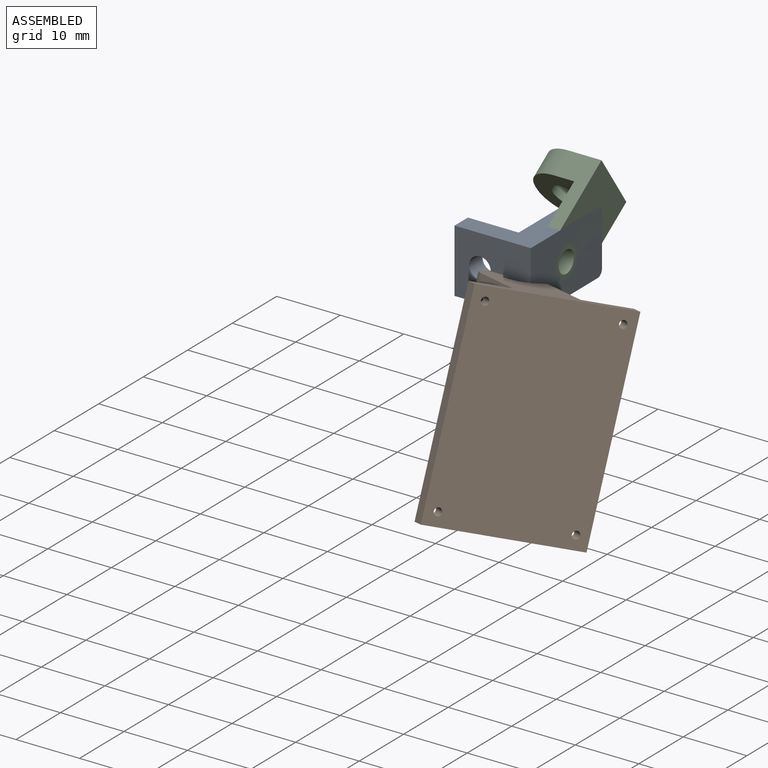
[diagram: assembled view]
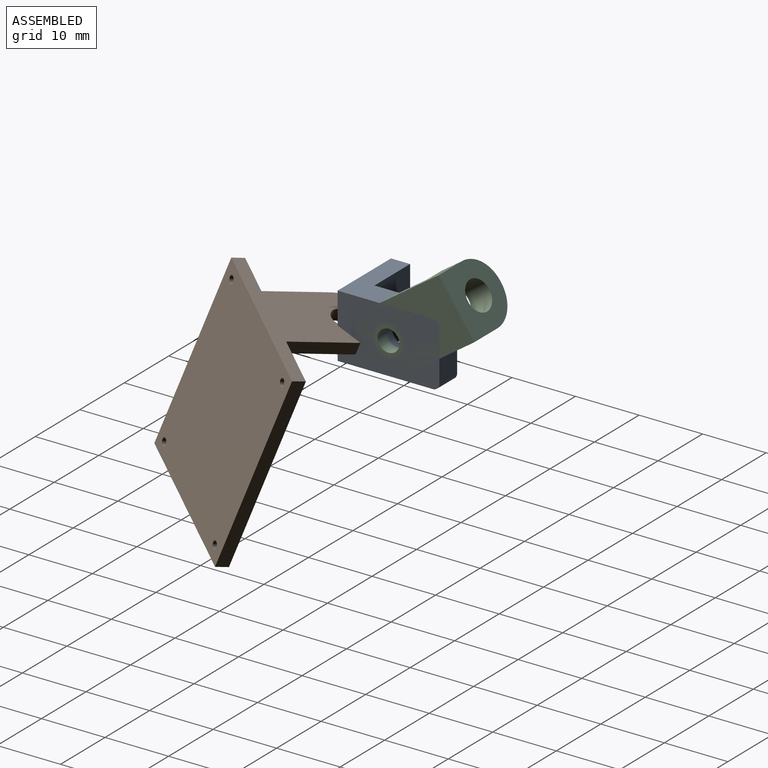
[diagram: assembled view, second angle]
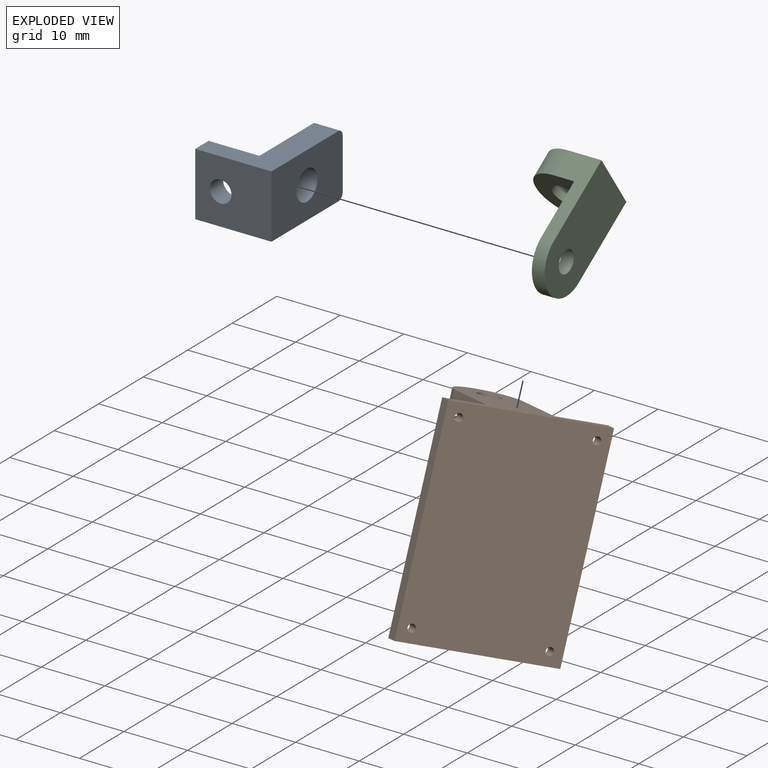
[diagram: exploded view]
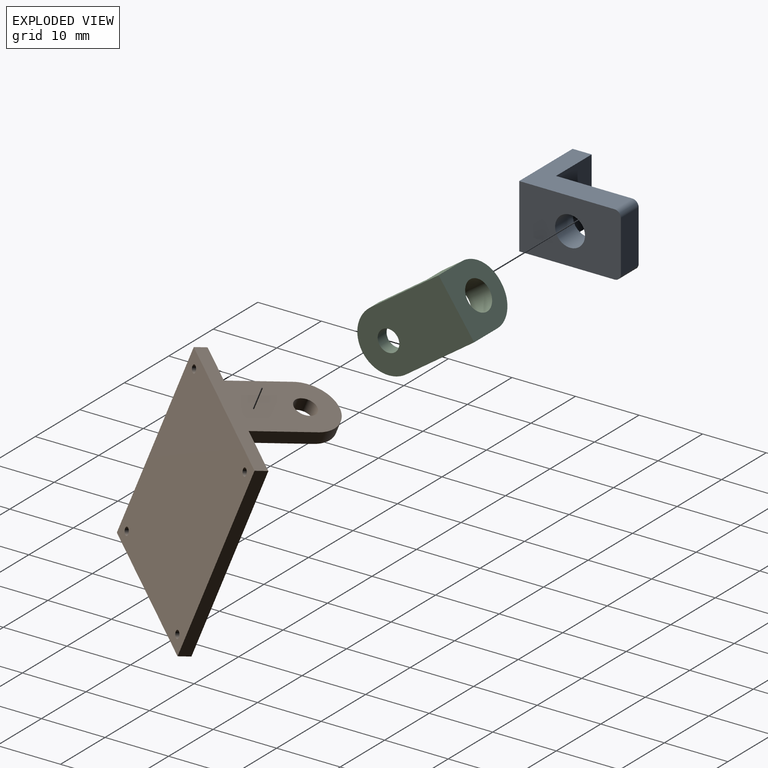
[diagram: exploded view, second angle]
FCSTD DOCUMENT  (FreeCAD 1.0R39109 (Git))
Label: CameraMount
License: All rights reserved
LicenseURL: https://en.wikipedia.org/wiki/All_rights_reserved
objects: Sketcher::SketchObject×13, PartDesign::Pad×8, PartDesign::Body×5, Part::Feature×5, PartDesign::ShapeBinder×3, App::Link×3, App::FeaturePython×3, PartDesign::Hole×2, PartDesign::Pocket×2, PartDesign::Plane×2, PartDesign::Fillet×2, App::Part×1, Assembly::JointGroup×1, Assembly::AssemblyObject×1
note: 83 computed .brp shape members not serialized (recipe doc carries the construction recipe); baked Part::Feature solids carry a one-line shape summary decoded from their .brp

FEATURE [Sketcher::SketchObject] Sketch
  ArcFitTolerance = 1e-06
  AttachmentSupport = -> [XY_Plane]
  FullyConstrained = true
  MakeInternals = false
  MapMode = 5
  sketch-geometry (8):
    g0: LineSegment StartX=-15 StartY=11 StartZ=0 EndX=-15 EndY=-11 EndZ=0
    g1: LineSegment StartX=-15 StartY=-11 StartZ=0 EndX=15 EndY=-11 EndZ=0
    g2: LineSegment StartX=15 StartY=-11 StartZ=0 EndX=15 EndY=11 EndZ=0
    g3: LineSegment StartX=15 StartY=11 StartZ=0 EndX=-15 EndY=11 EndZ=0
    g4: Circle CenterX=-14 CenterY=-10 CenterZ=0 NormalX=0 NormalY=0 NormalZ=1 AngleXU=0 Radius=0.9
    g5: Circle CenterX=-14 CenterY=10 CenterZ=0 NormalX=0 NormalY=0 NormalZ=1 AngleXU=0 Radius=0.9
    g6: Circle CenterX=14 CenterY=-10 CenterZ=0 NormalX=0 NormalY=0 NormalZ=1 AngleXU=0 Radius=0.9
    g7: Circle CenterX=14 CenterY=10 CenterZ=0 NormalX=0 NormalY=0 NormalZ=1 AngleXU=0 Radius=0.9
  constraints (20):
    c: Coincident(g0,g1)
    c: Coincident(g1,g2)
    c: Coincident(g2,g3)
    c: Coincident(g3,g0)
    c: Vertical(g0)
    c: Vertical(g2)
    c: Horizontal(g1)
    c: Horizontal(g3)
    c: Distance(g0,g2) = 30
    c: Distance(g1,g3) = 22
    c: Symmetric(g1,g0,g-1)
    c: Diameter(g4) = 1.8
    c: Distance(g4,g0) = 1
    c: Distance(g4,g1) = 1
    c: Diameter(g5) = 1.8
    c: Diameter(g6) = 1.8
    c: Diameter(g7) = 1.8
    c: Symmetric(g6,g4,g-2)
    c: Symmetric(g5,g7,g-2)
    c: Symmetric(g4,g5,g-1)
FEATURE [PartDesign::Pad] Pad
  Direction = (0,0,1)
  Length = 3
  Length2 = 10
  Profile = -> Sketch
  ReferenceAxis = -> Sketch [N_Axis]
  Refine = true
  Suppressed = false
  Type = 0
FEATURE [PartDesign::Body] Body  label="Camera PCB"
  AllowCompound = false
  Group = -> [Sketch,Pad]
  Origin = -> Origin
  Tip = -> Pad
FEATURE [Part::Feature] Part__Feature  label="3030 mount"
  shape: bbox 49.01 x 46.01 x 35.01 mm, 34 faces (baked)
FEATURE [Part::Feature] Part__Feature001  label="Ball outer"
  shape: bbox 28.94 x 36.01 x 22.01 mm, 45 faces (baked)
FEATURE [Part::Feature] Part__Feature002  label="Camera mount"
  Placement = pos=(2.63e-14,-2.5,-0.5) rot=(0,0,1;0rad)
  shape: bbox 42 x 16 x 38 mm, 34 faces (baked)
FEATURE [Part::Feature] Part__Feature003  label="2020 mount"
  Placement = pos=(4.5,-8.9e-15,0) rot=(0,0,1;0rad)
  shape: bbox 44.52 x 46.02 x 35.02 mm, 32 faces (baked)
FEATURE [App::Part] Ball_Joint_camera_mount_v6  label="Ball-Joint camera mount v6"
  Group = -> [Part__Feature,Part__Feature001,Part__Feature002,Part__Feature003]
  Origin = -> Origin001
FEATURE [Part::Feature] Part__Feature004  label="Extrusion Profiles v3"
  Placement = pos=(-29,0,5) rot=(0,1,0;1.5708rad)
  shape: bbox 100 x 20 x 20 mm, 67 faces (baked)
FEATURE [Sketcher::SketchObject] Sketch001
  ArcFitTolerance = 1e-06
  AttachmentSupport = -> [XY_Plane002]
  FullyConstrained = true
  MakeInternals = false
  MapMode = 5
  sketch-geometry (6):
    g0: LineSegment StartX=-10 StartY=0 StartZ=0 EndX=-10 EndY=-3 EndZ=0
    g1: LineSegment StartX=-10 StartY=-3 StartZ=0 EndX=-2 EndY=-3 EndZ=0
    g2: LineSegment StartX=-2 StartY=-3 StartZ=0 EndX=-2 EndY=-16 EndZ=0
    g3: LineSegment StartX=-2 StartY=-16 StartZ=0 EndX=2 EndY=-16 EndZ=0
    g4: LineSegment StartX=2 StartY=-16 StartZ=0 EndX=2 EndY=0 EndZ=0
    g5: LineSegment StartX=-10 StartY=0 StartZ=0 EndX=2 EndY=0 EndZ=0
  constraints (17):
    c: Coincident(g0,g1)
    c: Vertical(g0)
    c: Distance(g1,g0) = 3
    c: PointOnObject(g0,g-1)
    c: Coincident(g2,g3)
    c: Coincident(g3,g4)
    c: Vertical(g2)
    c: Vertical(g4)
    c: Distance(g3,g2) = 13
    c: Coincident(g1,g2)
    c: Horizontal(g1,g0)
    c: Coincident(g5,g0)
    c: PointOnObject(g5,g-1)
    c: Coincident(g4,g5)
    c: DistanceX(g3,g3) = 4
    c: Symmetric(g2,g3,g-2)
    c: DistanceX(g1,g1) = 8
FEATURE [PartDesign::Pad] Pad001
  Direction = (0,0,1)
  Length = 10
  Length2 = 10
  Profile = -> Sketch001
  ReferenceAxis = -> Sketch001 [N_Axis]
  Refine = true
  Reversed = true
  Suppressed = false
  Type = 0
FEATURE [Sketcher::SketchObject] Sketch002
  ArcFitTolerance = 1e-06
  AttachmentSupport = -> [Pad001]
  ExternalGeometry = -> [Pad001]
  FullyConstrained = true
  MakeInternals = false
  MapMode = 5
  Placement = pos=(0,-3,0) rot=(1,0,0;1.5708rad)
  sketch-geometry (3):
    g0: Circle CenterX=-6 CenterY=-5 CenterZ=0 NormalX=0 NormalY=0 NormalZ=1 AngleXU=0 Radius=1.5
    g1: GeomPoint [constr] X=-6 Y=0 Z=0
    g2: GeomPoint [constr] X=-10 Y=-5 Z=0
  constraints (5):
    c: Diameter(g0) = 3
    c: Symmetric(g-4,g-4,g1)
    c: Symmetric(g-3,g-3,g2)
    c: Horizontal(g2,g0)
    c: Vertical(g1,g0)
FEATURE [PartDesign::Hole] Hole
  BaseFeature = -> Pad001
  CustomThreadClearance = 0
  Depth = 25
  DepthType = 0
  Diameter = 3.4
  DrillForDepth = false
  DrillPoint = 1
  DrillPointAngle = 118
  HoleCutCountersinkAngle = 90
  HoleCutCustomValues = false
  HoleCutDepth = 0
  HoleCutDiameter = 6.1
  HoleCutType = 0
  ModelThread = false
  Profile = -> Sketch002
  Refine = true
  Suppressed = false
  Tapered = false
  TaperedAngle = 90
  ThreadClass = 0
  ThreadDepth = 25
  ThreadDepthType = 0
  ThreadDirection = 0
  ThreadFit = 0
  ThreadSize = 9
  ThreadType = 1
  Threaded = false
  UseCustomThreadClearance = false
FEATURE [Sketcher::SketchObject] Sketch003
  ArcFitTolerance = 1e-06
  AttachmentSupport = -> [Hole]
  ExternalGeometry = -> [Hole]
  FullyConstrained = true
  MakeInternals = false
  MapMode = 5
  Placement = pos=(2,0,0) rot=(0.57735,0.57735,0.57735;2.0944rad)
  sketch-geometry (3):
    g0: GeomPoint [constr] X=-8 Y=-10 Z=0
    g1: GeomPoint [constr] X=-2 Y=-5 Z=0
    g2: Circle CenterX=-8 CenterY=-5 CenterZ=0 NormalX=0 NormalY=0 NormalZ=1 AngleXU=0 Radius=2.35
  constraints (5):
    c: Symmetric(g-4,g-4,g0)
    c: Symmetric(g-3,g-3,g1)
    c: Horizontal(g2,g1)
    c: Vertical(g2,g0)
    c: Diameter(g2) = 4.7
FEATURE [PartDesign::Pocket] Pocket
  BaseFeature = -> Hole
  Direction = (-1,0,0)
  Length = 5
  Length2 = 5
  Profile = -> Sketch003
  ReferenceAxis = -> Sketch003 [N_Axis]
  Refine = true
  Suppressed = false
  Type = 0
FEATURE [PartDesign::ShapeBinder] ShapeBinder
  Support = -> [Pocket]
  TraceSupport = false
FEATURE [PartDesign::Plane] DatumPlane
  AttachmentSupport = -> [ShapeBinder]
  Length = 60
  MapMode = 5
  Placement = pos=(2,0,0) rot=(0.57735,0.57735,0.57735;2.0944rad)
  ResizeMode = 0
  Width = 60
FEATURE [Sketcher::SketchObject] Sketch004
  ArcFitTolerance = 1e-06
  AttachmentSupport = -> [DatumPlane]
  ExternalGeometry = -> [ShapeBinder]
  FullyConstrained = true
  MakeInternals = false
  MapMode = 5
  Placement = pos=(2,0,0) rot=(0.57735,0.57735,0.57735;2.0944rad)
  sketch-geometry (7):
    g0: ArcOfCircle CenterX=-7 CenterY=-5 CenterZ=0 NormalX=0 NormalY=0 NormalZ=1 AngleXU=0 Radius=4.9 StartAngle=4.71239 EndAngle=7.85398
    g1: Circle CenterX=-7 CenterY=-5 CenterZ=0 NormalX=0 NormalY=0 NormalZ=1 AngleXU=0 Radius=1.7
    g2: GeomPoint X=-7 Y=-0.1 Z=0
    g3: GeomPoint X=-7 Y=-9.9 Z=0
    g4: LineSegment StartX=-7 StartY=-0.1 StartZ=0 EndX=-20 EndY=-0.1 EndZ=0
    g5: LineSegment StartX=-20 StartY=-0.1 StartZ=0 EndX=-20 EndY=-9.9 EndZ=0
    g6: LineSegment StartX=-20 StartY=-9.9 StartZ=0 EndX=-7 EndY=-9.9 EndZ=0
  constraints (15):
    c: Coincident(g0,g-3)
    c: Diameter(g0) = 9.8
    c: Coincident(g1,g0)
    c: Diameter(g1) = 3.4
    c: Vertical(g3,g0)
    c: Vertical(g2,g0)
    c: Coincident(g4,g2)
    c: Horizontal(g4)
    c: Coincident(g5,g4)
    c: Vertical(g5)
    c: Coincident(g6,g5)
    c: Coincident(g6,g3)
    c: Coincident(g0,g4)
    c: Tangent(g0,g6) = -1.5708
    c: DistanceX(g6,g6) = 13
FEATURE [PartDesign::Pad] Pad002
  Direction = (1,0,0)
  Length = 2
  Length2 = 10
  Placement = pos=(2,0,0) rot=(0.57735,0.57735,0.57735;2.0944rad)
  Profile = -> Sketch004
  ReferenceAxis = -> Sketch004 [N_Axis]
  Refine = true
  Suppressed = false
  Type = 0
FEATURE [Sketcher::SketchObject] Sketch005
  ArcFitTolerance = 1e-06
  AttachmentSupport = -> [Pad002]
  ExternalGeometry = -> [Pad002]
  FullyConstrained = true
  MakeInternals = false
  MapMode = 5
  Placement = pos=(2,0,-9.9) rot=(0.707107,0.707107,0;3.14159rad)
  sketch-geometry (4):
    g0: LineSegment StartX=-20 StartY=2 StartZ=0 EndX=-16 EndY=2 EndZ=0
    g1: LineSegment StartX=-16 StartY=2 StartZ=0 EndX=-16 EndY=10 EndZ=0
    g2: LineSegment StartX=-16 StartY=10 StartZ=0 EndX=-20 EndY=10 EndZ=0
    g3: LineSegment StartX=-20 StartY=10 StartZ=0 EndX=-20 EndY=2 EndZ=0
  constraints (11):
    c: Coincident(g0,g1)
    c: Coincident(g1,g2)
    c: Coincident(g2,g3)
    c: Coincident(g3,g0)
    c: Horizontal(g0)
    c: Horizontal(g2)
    c: Vertical(g1)
    c: Vertical(g3)
    c: Distance(g1,g3) = 4
    c: Distance(g0,g2) = 8
    c: Coincident(g0,g-3)
FEATURE [PartDesign::Pad] Pad003
  BaseFeature = -> Pad002
  Direction = (0,0,-1)
  Length = 9.8
  Length2 = 10
  Placement = pos=(2,0,0) rot=(0.57735,0.57735,0.57735;2.0944rad)
  Profile = -> Sketch005
  ReferenceAxis = -> Sketch005 [N_Axis]
  Refine = true
  Reversed = true
  Suppressed = false
  Type = 0
FEATURE [Sketcher::SketchObject] Sketch006
  ArcFitTolerance = 1e-06
  AttachmentSupport = -> [Pad003]
  ExternalGeometry = -> [Pad003]
  FullyConstrained = true
  MakeInternals = false
  MapMode = 5
  Placement = pos=(2,-20,0) rot=(0.57735,0.57735,-0.57735;2.0944rad)
  sketch-geometry (3):
    g0: GeomPoint [constr] X=0.1 Y=5 Z=0
    g1: GeomPoint [constr] X=5 Y=10 Z=0
    g2: Circle CenterX=5 CenterY=5 CenterZ=0 NormalX=0 NormalY=0 NormalZ=1 AngleXU=0 Radius=2.35
  constraints (5):
    c: Symmetric(g-5,g-5,g0)
    c: Symmetric(g-4,g-4,g1)
    c: Diameter(g2) = 4.7
    c: Horizontal(g0,g2)
    c: Vertical(g2,g1)
FEATURE [PartDesign::Pocket] Pocket001
  BaseFeature = -> Pad003
  Direction = (0,1,0)
  Length = 5
  Length2 = 5
  Placement = pos=(2,0,0) rot=(0.57735,0.57735,0.57735;2.0944rad)
  Profile = -> Sketch006
  ReferenceAxis = -> Sketch006 [N_Axis]
  Refine = true
  Suppressed = false
  Type = 0
FEATURE [PartDesign::ShapeBinder] ShapeBinder001
  Placement = pos=(2,0,0) rot=(0.57735,0.57735,0.57735;2.0944rad)
  Support = -> [Pocket001]
  TraceSupport = false
FEATURE [Sketcher::SketchObject] Sketch007
  ArcFitTolerance = 1e-06
  AttachmentSupport = -> [ShapeBinder001]
  ExternalGeometry = -> [ShapeBinder001]
  FullyConstrained = true
  MakeInternals = false
  MapMode = 5
  Placement = pos=(2,-20,0) rot=(0.57735,0.57735,-0.57735;2.0944rad)
  sketch-geometry (7):
    g0: ArcOfCircle CenterX=5 CenterY=5 CenterZ=0 NormalX=0 NormalY=0 NormalZ=1 AngleXU=0 Radius=4.9 StartAngle=1.5708 EndAngle=4.71239
    g1: Circle CenterX=5 CenterY=5 CenterZ=0 NormalX=0 NormalY=0 NormalZ=1 AngleXU=0 Radius=1.7
    g2: GeomPoint X=5 Y=9.9 Z=0
    g3: GeomPoint X=5 Y=0.1 Z=0
    g4: LineSegment StartX=5 StartY=9.9 StartZ=0 EndX=15 EndY=9.9 EndZ=0
    g5: LineSegment StartX=15 StartY=9.9 StartZ=0 EndX=15 EndY=0.1 EndZ=0
    g6: LineSegment StartX=15 StartY=0.1 StartZ=0 EndX=5 EndY=0.1 EndZ=0
  constraints (16):
    c: Diameter(g0) = 9.8
    c: Coincident(g0,g-3)
    c: Diameter(g1) = 3.4
    c: Coincident(g1,g0)
    c: Vertical(g3,g0)
    c: Vertical(g0,g2)
    c: Distance(g4) = 10
    c: Coincident(g4,g2)
    c: Horizontal(g4)
    c: Coincident(g5,g4)
    c: Vertical(g5)
    c: Coincident(g6,g5)
    c: Coincident(g6,g3)
    c: Horizontal(g6)
    c: Coincident(g0,g6)
    c: Coincident(g0,g4)
FEATURE [PartDesign::Pad] Pad004
  Direction = (0,-1,0)
  Length = 2
  Length2 = 10
  Placement = pos=(2,0,0) rot=(0.57735,0.57735,0.57735;2.0944rad)
  Profile = -> Sketch007
  ReferenceAxis = -> Sketch007 [N_Axis]
  Refine = true
  Suppressed = false
  Type = 0
FEATURE [Sketcher::SketchObject] Sketch009
  ArcFitTolerance = 1e-06
  AttachmentSupport = -> [Pad004]
  ExternalGeometry = -> [Pad004]
  FullyConstrained = false
  MakeInternals = false
  MapMode = 5
  Placement = pos=(2,0,-15) rot=(0.707107,0.707107,0;3.14159rad)
  sketch-geometry (4):
    g0: LineSegment StartX=-52 StartY=16.3391 StartZ=0 EndX=-52 EndY=-7.66088 EndZ=0
    g1: LineSegment StartX=-52 StartY=-7.66088 StartZ=0 EndX=-20 EndY=-7.66088 EndZ=0
    g2: LineSegment StartX=-20 StartY=-7.66088 StartZ=0 EndX=-20 EndY=16.3391 EndZ=0
    g3: LineSegment StartX=-20 StartY=16.3391 StartZ=0 EndX=-52 EndY=16.3391 EndZ=0
  constraints (11):
    c: Coincident(g0,g1)
    c: Coincident(g1,g2)
    c: Coincident(g2,g3)
    c: Coincident(g3,g0)
    c: Vertical(g0)
    c: Vertical(g2)
    c: Horizontal(g1)
    c: Horizontal(g3)
    c: DistanceX(g3,g3) = 32
    c: DistanceY(g0,g0) = 24
    c: PointOnObject(g-3,g2)
FEATURE [PartDesign::Pad] Pad005
  BaseFeature = -> Pad004
  Direction = (0,0,-1)
  Length = 2
  Length2 = 10
  Placement = pos=(2,0,0) rot=(0.57735,0.57735,0.57735;2.0944rad)
  Profile = -> Sketch009
  ReferenceAxis = -> Sketch009 [N_Axis]
  Refine = true
  Suppressed = false
  Type = 0
FEATURE [App::Link] Body004
  LinkPlacement = pos=(0,0,0) rot=(1,0,0;3.14159rad)
  LinkedObject = -> Body001
  Placement = pos=(0,0,0) rot=(1,0,0;3.14159rad)
FEATURE [App::FeaturePython] GroundedJoint  # Assembly grounded joint (typed FeaturePython)
  ObjectToGround = -> Body004
FEATURE [App::Link] Body005
  LinkPlacement = pos=(-0.406355,14.9805,20.5121) rot=(-0.290664,0.794321,0.533449;3.95852rad)
  LinkedObject = -> Body003
  Placement = pos=(-0.406355,14.9805,20.5121) rot=(-0.290664,0.794321,0.533449;3.95852rad)
FEATURE [App::Link] Body006
  LinkPlacement = pos=(4,-0.601474,5.12103) rot=(0,-0.29847,0.954419;3.14159rad)
  LinkedObject = -> Body002
  Placement = pos=(4,-0.601474,5.12103) rot=(0,-0.29847,0.954419;3.14159rad)
FEATURE [App::FeaturePython] Joint  label="Revolute"  # Assembly joint (typed FeaturePython)
  Activated = true
  AngleMax = 0
  AngleMin = 0
  Detach1 = false
  Detach2 = false
  Distance = 0
  Distance2 = 0
  EnableAngleMax = false
  EnableAngleMin = false
  EnableLengthMax = false
  EnableLengthMin = false
  JointType = 1 (Revolute)
  LengthMax = 0
  LengthMin = 0
  Offset2 = pos=(0,0,4) rot=(0,0,1;0rad)
  Placement1 = pos=(2,-7,-5) rot=(-0.57735,-0.57735,-0.57735;4.18879rad)
  Placement2 = pos=(2,-8,-5) rot=(0.57735,0.57735,0.57735;2.0944rad)
  Reference1 = -> Assembly [Body006.Edge26,Body006.Edge26]
  Reference2 = -> Assembly [Body004.Edge12,Body004.Edge12]
FEATURE [App::FeaturePython] Joint001  label="Revolute001"  # Assembly joint (typed FeaturePython)
  Activated = true
  AngleMax = 0
  AngleMin = 0
  Detach1 = false
  Detach2 = false
  Distance = 0
  Distance2 = 0
  EnableAngleMax = false
  EnableAngleMin = false
  EnableLengthMax = false
  EnableLengthMin = false
  JointType = 1 (Revolute)
  LengthMax = 0
  LengthMin = 0
  Placement1 = pos=(4,1.55306,-1.01941) rot=(0,0.476872,-0.878973;3.14159rad)
  Placement2 = pos=(7,-22,-5) rot=(-0.57735,-0.57735,0.57735;4.18879rad)
  Reference1 = -> Assembly [Body006.?Edge22,Body006.?Edge22]
  Reference2 = -> Assembly [Body005.Edge25,Body005.Edge25]
FEATURE [Assembly::JointGroup] Joints
  Group = -> [GroundedJoint,Joint,Joint001]
FEATURE [Assembly::AssemblyObject] Assembly
  Group = -> [Joints,Body004,GroundedJoint,Body005,Body006,Joint,Joint001]
  Origin = -> Origin005
  Type = Assembly
FEATURE [Sketcher::SketchObject] Sketch010
  ArcFitTolerance = 1e-06
  AttachmentSupport = -> [Pad005]
  ExternalGeometry = -> [Pad005]
  FullyConstrained = true
  MakeInternals = false
  MapMode = 5
  Placement = pos=(2,-9e-16,-17) rot=(0.707107,0.707107,0;3.14159rad)
  sketch-geometry (8):
    g0: Circle CenterX=-50 CenterY=14.3391 CenterZ=0 NormalX=0 NormalY=0 NormalZ=1 AngleXU=0 Radius=0.5
    g1: Circle CenterX=-22 CenterY=14.3391 CenterZ=0 NormalX=0 NormalY=0 NormalZ=1 AngleXU=0 Radius=0.5
    g2: Circle CenterX=-22 CenterY=-5.66088 CenterZ=0 NormalX=0 NormalY=0 NormalZ=1 AngleXU=0 Radius=0.5
    g3: Circle CenterX=-50 CenterY=-5.66088 CenterZ=0 NormalX=0 NormalY=0 NormalZ=1 AngleXU=0 Radius=0.5
    g4: LineSegment [constr] StartX=-51 StartY=15.3391 StartZ=0 EndX=-51 EndY=-6.66088 EndZ=0
    g5: LineSegment [constr] StartX=-51 StartY=-6.66088 StartZ=0 EndX=-21 EndY=-6.66088 EndZ=0
    g6: LineSegment [constr] StartX=-21 StartY=-6.66088 StartZ=0 EndX=-21 EndY=15.3391 EndZ=0
    g7: LineSegment [constr] StartX=-21 StartY=15.3391 StartZ=0 EndX=-51 EndY=15.3391 EndZ=0
  constraints (24):
    c: Diameter(g0) = 1
    c: Coincident(g4,g5)
    c: Coincident(g5,g6)
    c: Coincident(g6,g7)
    c: Coincident(g7,g4)
    c: Vertical(g4)
    c: Vertical(g6)
    c: Horizontal(g5)
    c: Horizontal(g7)
    c: Distance(g-6,g5) = 1
    c: Distance(g7,g-3) = 1
    c: Distance(g-4,g4) = 1
    c: Distance(g6,g-5) = 1
    c: Distance(g0,g4) = 1
    c: Distance(g0,g7) = 1
    c: Equal(g1,g0)
    c: Equal(g3,g0)
    c: Distance(g3,g4) = 1
    c: Distance(g3,g5) = 1
    c: Equal(g0,g2)
    c: Distance(g2,g5) = 1
    c: Distance(g2,g6) = 1
    c: Distance(g1,g7) = 1
    c: Distance(g1,g6) = 1
FEATURE [PartDesign::Hole] Hole001
  BaseFeature = -> Pad005
  CustomThreadClearance = 0
  Depth = 25
  DepthType = 0
  Diameter = 1.2
  DrillForDepth = false
  DrillPoint = 1
  DrillPointAngle = 118
  HoleCutCountersinkAngle = 90
  HoleCutCustomValues = false
  HoleCutDepth = 0
  HoleCutDiameter = 6.1
  HoleCutType = 0
  ModelThread = false
  Placement = pos=(2,0,0) rot=(0.57735,0.57735,0.57735;2.0944rad)
  Profile = -> Sketch010
  Refine = true
  Suppressed = false
  Tapered = false
  TaperedAngle = 90
  ThreadClass = 0
  ThreadDepth = 25
  ThreadDepthType = 0
  ThreadDirection = 0
  ThreadFit = 0
  ThreadSize = 0
  ThreadType = 1
  Threaded = false
  UseCustomThreadClearance = false
FEATURE [PartDesign::ShapeBinder] ShapeBinder002
  Placement = pos=(2,0,0) rot=(0.57735,0.57735,0.57735;2.0944rad)
  Support = -> [Hole001]
  TraceSupport = false
FEATURE [PartDesign::Plane] DatumPlane001
  AttachmentOffset = pos=(0,0,5) rot=(0,0,1;0rad)
  AttachmentSupport = -> [ShapeBinder002]
  Length = 60
  MapMode = 5
  Placement = pos=(2,-1.9e-15,-22) rot=(0.707107,0.707107,0;3.14159rad)
  ResizeMode = 0
  Width = 60
FEATURE [Sketcher::SketchObject] Sketch011
  ArcFitTolerance = 1e-06
  AttachmentSupport = -> [DatumPlane001]
  ExternalGeometry = -> [ShapeBinder002]
  FullyConstrained = true
  MakeInternals = false
  MapMode = 5
  Placement = pos=(2,-1.9e-15,-22) rot=(0.707107,0.707107,0;3.14159rad)
  sketch-geometry (13):
    g0: LineSegment StartX=-52 StartY=16.3391 StartZ=0 EndX=-52 EndY=-7.66088 EndZ=0
    g1: LineSegment StartX=-52 StartY=-7.66088 StartZ=0 EndX=-20 EndY=-7.66088 EndZ=0
    g2: LineSegment StartX=-20 StartY=-7.66088 StartZ=0 EndX=-20 EndY=16.3391 EndZ=0
    g3: LineSegment StartX=-20 StartY=16.3391 StartZ=0 EndX=-52 EndY=16.3391 EndZ=0
    g4: Circle CenterX=-36 CenterY=4.33912 CenterZ=0 NormalX=0 NormalY=0 NormalZ=1 AngleXU=0 Radius=5
    g5: LineSegment [constr] StartX=-51 StartY=15.3391 StartZ=0 EndX=-51 EndY=-6.66088 EndZ=0
    g6: LineSegment [constr] StartX=-51 StartY=-6.66088 StartZ=0 EndX=-21 EndY=-6.66088 EndZ=0
    g7: LineSegment [constr] StartX=-21 StartY=-6.66088 StartZ=0 EndX=-21 EndY=15.3391 EndZ=0
    g8: LineSegment [constr] StartX=-21 StartY=15.3391 StartZ=0 EndX=-51 EndY=15.3391 EndZ=0
    g9: GeomPoint [constr] X=-51 Y=4.33912 Z=0
    g10: GeomPoint [constr] X=-21 Y=4.33912 Z=0
    g11: GeomPoint [constr] X=-36 Y=15.3391 Z=0
    g12: GeomPoint [constr] X=-36 Y=-6.66088 Z=0
  constraints (29):
    c: Coincident(g0,g1)
    c: Coincident(g1,g2)
    c: Coincident(g2,g3)
    c: Coincident(g3,g0)
    c: Vertical(g0)
    c: Vertical(g2)
    c: Horizontal(g1)
    c: Horizontal(g3)
    c: Coincident(g0,g-4)
    c: Coincident(g1,g-6)
    c: Coincident(g5,g6)
    c: Coincident(g6,g7)
    c: Coincident(g7,g8)
    c: Coincident(g8,g5)
    c: Vertical(g5)
    c: Vertical(g7)
    c: Horizontal(g6)
    c: Horizontal(g8)
    c: Distance(g1,g6) = 1
    c: Distance(g0,g5) = 1
    c: Distance(g2,g7) = 1
    c: Distance(g3,g8) = 1
    c: Symmetric(g5,g5,g9)
    c: Symmetric(g7,g7,g10)
    c: Symmetric(g8,g8,g11)
    c: Symmetric(g6,g6,g12)
    c: Vertical(g12,g4)
    c: Horizontal(g4,g9)
    c: Diameter(g4) = 10
FEATURE [PartDesign::Pad] Pad006
  Direction = (0,0,-1)
  Length = 1
  Length2 = 10
  Placement = pos=(2,-1.9e-15,-22) rot=(0.707107,0.707107,0;3.14159rad)
  Profile = -> Sketch011
  ReferenceAxis = -> Sketch011 [N_Axis]
  Refine = true
  Suppressed = false
  Type = 0
FEATURE [Sketcher::SketchObject] Sketch012
  ArcFitTolerance = 1e-06
  AttachmentSupport = -> [Pad006]
  ExternalGeometry = -> [Pad006]
  FullyConstrained = true
  MakeInternals = false
  MapMode = 5
  Placement = pos=(2,-1.9e-15,-22) rot=(0,0,1;1.5708rad)
  sketch-geometry (16):
    g0: LineSegment StartX=-52 StartY=7.66088 StartZ=0 EndX=-52 EndY=-16.3391 EndZ=0
    g1: LineSegment StartX=-52 StartY=-16.3391 StartZ=0 EndX=-20 EndY=-16.3391 EndZ=0
    g2: LineSegment StartX=-20 StartY=-16.3391 StartZ=0 EndX=-20 EndY=7.66088 EndZ=0
    g3: LineSegment StartX=-20 StartY=7.66088 StartZ=0 EndX=-52 EndY=7.66088 EndZ=0
    g4: LineSegment StartX=-51 StartY=6.66088 StartZ=0 EndX=-51 EndY=-15.3391 EndZ=0
    g5: LineSegment StartX=-51 StartY=-15.3391 StartZ=0 EndX=-21 EndY=-15.3391 EndZ=0
    g6: LineSegment StartX=-21 StartY=-15.3391 StartZ=0 EndX=-21 EndY=6.66088 EndZ=0
    g7: LineSegment StartX=-21 StartY=6.66088 StartZ=0 EndX=-51 EndY=6.66088 EndZ=0
    g8: Circle [constr] CenterX=-50 CenterY=-14.3391 CenterZ=0 NormalX=0 NormalY=0 NormalZ=1 AngleXU=0 Radius=0.6
    g9: Circle [constr] CenterX=-50 CenterY=-14.3391 CenterZ=0 NormalX=0 NormalY=0 NormalZ=1 AngleXU=0 Radius=1.5
    g10: Circle [constr] CenterX=-22 CenterY=5.66088 CenterZ=0 NormalX=0 NormalY=0 NormalZ=1 AngleXU=0 Radius=1.5
    g11: Circle [constr] CenterX=-22 CenterY=5.66088 CenterZ=0 NormalX=0 NormalY=0 NormalZ=1 AngleXU=0 Radius=0.6
    g12: Circle [constr] CenterX=-22 CenterY=-14.3391 CenterZ=0 NormalX=0 NormalY=0 NormalZ=1 AngleXU=0 Radius=0.6
    g13: Circle [constr] CenterX=-22 CenterY=-14.3391 CenterZ=0 NormalX=0 NormalY=0 NormalZ=1 AngleXU=0 Radius=1.5
    g14: Circle [constr] CenterX=-50 CenterY=5.66088 CenterZ=0 NormalX=0 NormalY=0 NormalZ=1 AngleXU=0 Radius=1.5
    g15: Circle [constr] CenterX=-50 CenterY=5.66088 CenterZ=0 NormalX=0 NormalY=0 NormalZ=1 AngleXU=0 Radius=0.6
  constraints (42):
    c: Coincident(g0,g1)
    c: Coincident(g1,g2)
    c: Coincident(g2,g3)
    c: Coincident(g3,g0)
    c: Vertical(g0)
    c: Vertical(g2)
    c: Horizontal(g1)
    c: Horizontal(g3)
    c: Coincident(g0,g-5)
    c: Coincident(g1,g-6)
    c: Coincident(g4,g5)
    c: Coincident(g5,g6)
    c: Coincident(g6,g7)
    c: Coincident(g7,g4)
    c: Vertical(g4)
    c: Vertical(g6)
    c: Horizontal(g5)
    c: Horizontal(g7)
    c: Distance(g1,g5) = 1
    c: Distance(g2,g6) = 1
    c: Distance(g3,g7) = 1
    c: Distance(g0,g4) = 1
    c: Diameter(g8) = 1.2
    c: Distance(g9,g4) = 1
    c: Diameter(g9) = 3
    c: Distance(g9,g5) = 1
    c: Coincident(g8,g9)
    c: Diameter(g11) = 1.2
    c: Diameter(g10) = 3
    c: Coincident(g11,g10)
    c: Distance(g10,g7) = 1
    c: Distance(g10,g6) = 1
    c: Coincident(g13,g12)
    c: Diameter(g12) = 1.2
    c: Diameter(g13) = 3
    c: Distance(g12,g5) = 1
    c: Distance(g12,g6) = 1
    c: Coincident(g14,g15)
    c: Diameter(g15) = 1.2
    c: Diameter(g14) = 3
    c: Distance(g14,g7) = 1
    c: Distance(g14,g4) = 1
FEATURE [PartDesign::Pad] Pad007
  BaseFeature = -> Pad006
  Direction = (0,0,1)
  Length = 4
  Length2 = 10
  Placement = pos=(2,-1.9e-15,-22) rot=(0.707107,0.707107,0;3.14159rad)
  Profile = -> Sketch012
  ReferenceAxis = -> Sketch012 [N_Axis]
  Refine = true
  Suppressed = false
  Type = 0
FEATURE [PartDesign::Body] Body007
  AllowCompound = false
  Group = -> [ShapeBinder002,DatumPlane001,Sketch011,Pad006,Sketch012,Pad007]
  Origin = -> Origin006
  Tip = -> Pad007
FEATURE [Sketcher::SketchObject] Sketch013
  ArcFitTolerance = 1e-06
  AttachmentSupport = -> [Hole001]
  FullyConstrained = true
  MakeInternals = false
  MapMode = 5
  Placement = pos=(2,-1.9e-15,-17) rot=(0.707107,0.707107,0;3.14159rad)
FEATURE [PartDesign::Body] Body003
  AllowCompound = false
  Group = -> [ShapeBinder001,Sketch007,Pad004,Sketch009,Pad005,Sketch010,Hole001,Sketch013]
  Origin = -> Origin004
  Tip = -> Hole001
FEATURE [PartDesign::Fillet] Fillet
  Base = -> Pocket [Edge14,Edge17]
  BaseFeature = -> Pocket
  Radius = 1
  Refine = true
  SupportTransform = false
  Suppressed = false
  UseAllEdges = false
FEATURE [PartDesign::Body] Body001  label="Body"
  AllowCompound = false
  Group = -> [Sketch001,Pad001,Sketch002,Hole,Sketch003,Pocket,Fillet]
  Origin = -> Origin002
  Tip = -> Fillet
FEATURE [PartDesign::Fillet] Fillet001
  Base = -> Pocket001 [Edge12,Edge8]
  BaseFeature = -> Pocket001
  Placement = pos=(2,0,0) rot=(0.57735,0.57735,0.57735;2.0944rad)
  Radius = 4.8
  Refine = true
  SupportTransform = false
  Suppressed = false
  UseAllEdges = false
FEATURE [PartDesign::Body] Body002
  AllowCompound = false
  Group = -> [ShapeBinder,DatumPlane,Sketch004,Pad002,Sketch005,Pad003,Sketch006,Pocket001,Fillet001]
  Origin = -> Origin003
  Tip = -> Fillet001
